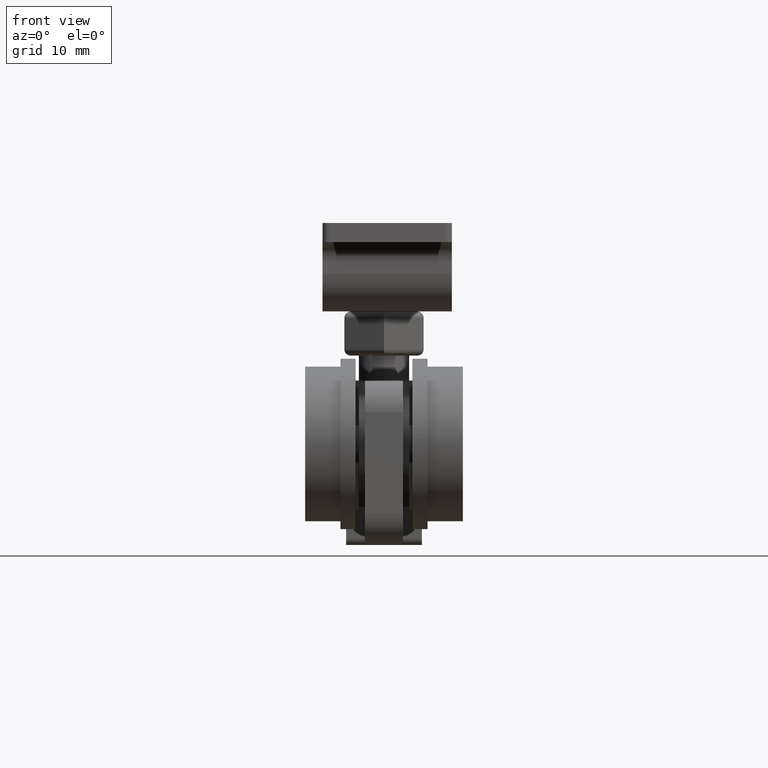
[diagram: clean part render]
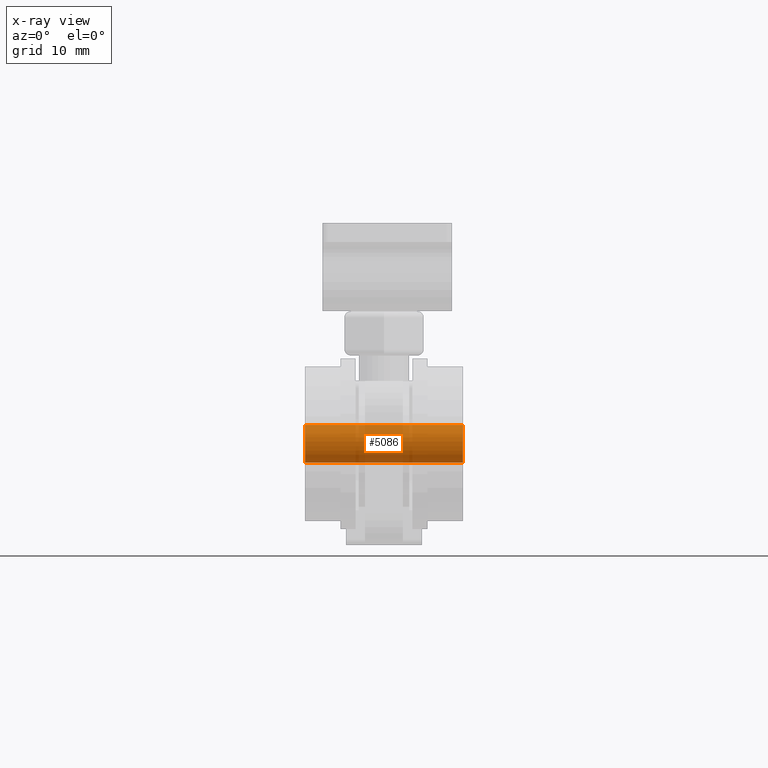
[diagram: x-ray — body ghosted, one internal face saturated and labeled with its STEP entity id]
A machine part, front view, then the same camera in x-ray: the body is ghosted and one INTERNAL B-rep face — a face not visible from any outside direction — is saturated and labeled: STEP entity #5086.
In plain terms, the highlighted cylindrical surface (edge-blend (fillet) strip) has radius 3 mm, axis along (1, 0, 0).
Its self-contained STEP definition (entity closure, byte-faithful):
#5045=CARTESIAN_POINT('',(-12.500000009999994,24.000000000000011,15.999999999999991));
#5046=DIRECTION('',(1.0,0.0,6.123234E-017));
#5047=DIRECTION('',(0.0,1.0,0.0));
#5048=AXIS2_PLACEMENT_3D('',#5045,#5046,#5047);
#5049=CYLINDRICAL_SURFACE('',#5048,3.000000000000001);
#5050=CARTESIAN_POINT('',(-12.499999999999993,24.000000000000011,12.999999999999989));
#5051=VERTEX_POINT('',#5050);
#5052=CARTESIAN_POINT('',(-12.499999999999993,24.000000000000011,18.999999999999986));
#5053=VERTEX_POINT('',#5052);
#5054=CARTESIAN_POINT('',(-12.499999999999993,24.000000000000011,15.999999999999989));
#5055=DIRECTION('',(-1.0,0.0,-6.123234E-017));
#5056=DIRECTION('',(-6.123234E-017,0.0,1.0));
#5057=AXIS2_PLACEMENT_3D('',#5054,#5055,#5056);
#5058=CIRCLE('',#5057,3.000000000000001);
#5059=EDGE_CURVE('',#5051,#5053,#5058,.T.);
#5060=ORIENTED_EDGE('',*,*,#5059,.F.);
#5061=CARTESIAN_POINT('',(12.500000000000007,24.000000000000011,12.999999999999989));
#5062=VERTEX_POINT('',#5061);
#5063=CARTESIAN_POINT('',(-12.499999999999993,24.000000000000011,12.999999999999989));
#5064=DIRECTION('',(1.0,0.0,0.0));
#5065=VECTOR('',#5064,25.0);
#5066=LINE('',#5063,#5065);
#5067=EDGE_CURVE('',#5051,#5062,#5066,.T.);
#5068=ORIENTED_EDGE('',*,*,#5067,.T.);
#5069=CARTESIAN_POINT('',(12.500000000000007,24.000000000000011,18.999999999999989));
#5070=VERTEX_POINT('',#5069);
#5071=CARTESIAN_POINT('',(12.500000000000007,24.000000000000011,15.999999999999989));
#5072=DIRECTION('',(-1.0,0.0,-6.123234E-017));
#5073=DIRECTION('',(-6.123234E-017,0.0,1.0));
#5074=AXIS2_PLACEMENT_3D('',#5071,#5072,#5073);
#5075=CIRCLE('',#5074,3.000000000000001);
#5076=EDGE_CURVE('',#5062,#5070,#5075,.T.);
#5077=ORIENTED_EDGE('',*,*,#5076,.T.);
#5078=CARTESIAN_POINT('',(-12.499999999999993,24.000000000000011,18.999999999999986));
#5079=DIRECTION('',(1.0,0.0,0.0));
#5080=VECTOR('',#5079,25.0);
#5081=LINE('',#5078,#5080);
#5082=EDGE_CURVE('',#5053,#5070,#5081,.T.);
#5083=ORIENTED_EDGE('',*,*,#5082,.F.);
#5084=EDGE_LOOP('',(#5060,#5068,#5077,#5083));
#5085=FACE_OUTER_BOUND('',#5084,.T.);
#5086=ADVANCED_FACE('',(#5085),#5049,.T.);